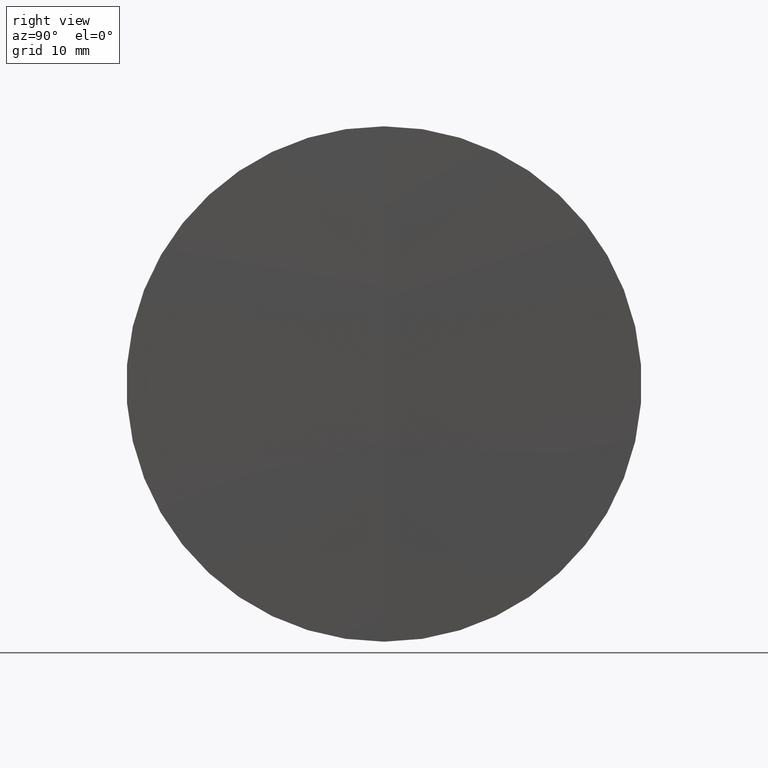
[diagram: clean part render]
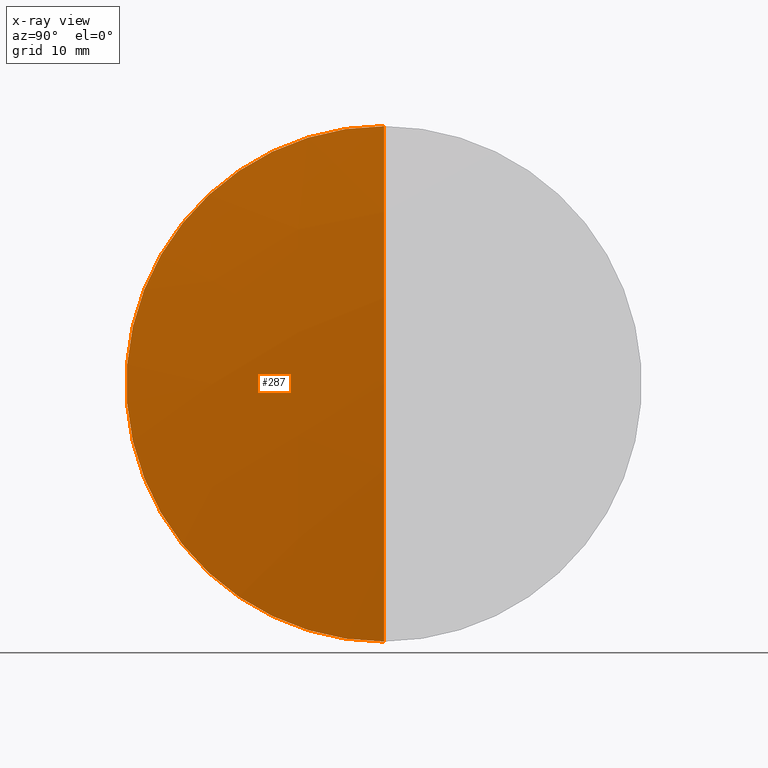
[diagram: x-ray — body ghosted, one internal face saturated and labeled with its STEP entity id]
A machine part, right view, then the same camera in x-ray: the body is ghosted and one INTERNAL B-rep face — a face not visible from any outside direction — is saturated and labeled: STEP entity #287.
In plain terms, the highlighted spherical surface has radius 259.4 mm.
Its self-contained STEP definition (entity closure, byte-faithful):
#6 = EDGE_CURVE ( 'NONE', #163, #120, #19, .T. ) ;
#10 = ORIENTED_EDGE ( 'NONE', *, *, #70, .F. ) ;
#17 = DIRECTION ( 'NONE',  ( 0.0000000000000000000, 0.0000000000000000000, 1.000000000000000000 ) ) ;
#19 = CIRCLE ( 'NONE', #253, 25.40000000000006300 ) ;
#38 = AXIS2_PLACEMENT_3D ( 'NONE', #219, #275, #88 ) ;
#42 = AXIS2_PLACEMENT_3D ( 'NONE', #312, #113, #118 ) ;
#64 = DIRECTION ( 'NONE',  ( 0.0000000000000000000, 0.0000000000000000000, 1.000000000000000000 ) ) ;
#70 = EDGE_CURVE ( 'NONE', #97, #120, #344, .T. ) ;
#88 = DIRECTION ( 'NONE',  ( 0.0000000000000000000, 0.0000000000000000000, -1.000000000000000000 ) ) ;
#96 = ORIENTED_EDGE ( 'NONE', *, *, #148, .T. ) ;
#97 = VERTEX_POINT ( 'NONE', #112 ) ;
#101 = CIRCLE ( 'NONE', #42, 259.3999999999999800 ) ;
#112 = CARTESIAN_POINT ( 'NONE',  ( 717.1805592743230600, 0.0000000000000000000, 9.429672165501970000E-015 ) ) ;
#113 = DIRECTION ( 'NONE',  ( -0.0000000000000000000, 1.000000000000000000, 1.224646799147353200E-016 ) ) ;
#116 = DIRECTION ( 'NONE',  ( 0.0000000000000000000, 1.000000000000000000, 0.0000000000000000000 ) ) ;
#118 = DIRECTION ( 'NONE',  ( 0.0000000000000000000, -1.224646799147353200E-016, 1.000000000000000000 ) ) ;
#119 = CARTESIAN_POINT ( 'NONE',  ( 457.7805592743230200, 0.0000000000000000000, -6.453996819439198100E-015 ) ) ;
#120 = VERTEX_POINT ( 'NONE', #221 ) ;
#123 = AXIS2_PLACEMENT_3D ( 'NONE', #119, #116, #17 ) ;
#143 = DIRECTION ( 'NONE',  ( -1.000000000000000000, -0.0000000000000000000, -0.0000000000000000000 ) ) ;
#148 = EDGE_CURVE ( 'NONE', #97, #163, #101, .T. ) ;
#163 = VERTEX_POINT ( 'NONE', #245 ) ;
#166 = CARTESIAN_POINT ( 'NONE',  ( 715.9340020172002100, 0.0000000000000000000, 0.0000000000000000000 ) ) ;
#182 = SPHERICAL_SURFACE ( 'NONE', #123, 259.3999999999999800 ) ;
#219 = CARTESIAN_POINT ( 'NONE',  ( 457.7805592743230200, 0.0000000000000000000, -6.453996819439198100E-015 ) ) ;
#221 = CARTESIAN_POINT ( 'NONE',  ( 715.9340020172002100, 0.0000000000000000000, 25.39999999999994500 ) ) ;
#245 = CARTESIAN_POINT ( 'NONE',  ( 715.9340020172002100, 3.110602869834270600E-015, -25.39999999999995200 ) ) ;
#253 = AXIS2_PLACEMENT_3D ( 'NONE', #166, #143, #64 ) ;
#255 = ORIENTED_EDGE ( 'NONE', *, *, #6, .T. ) ;
#275 = DIRECTION ( 'NONE',  ( 0.0000000000000000000, -1.000000000000000000, 0.0000000000000000000 ) ) ;
#287 = ADVANCED_FACE ( 'NONE', ( #323 ), #182, .F. ) ;
#312 = CARTESIAN_POINT ( 'NONE',  ( 457.7805592743230200, 0.0000000000000000000, -6.453996819439198100E-015 ) ) ;
#322 = EDGE_LOOP ( 'NONE', ( #10, #96, #255 ) ) ;
#323 = FACE_OUTER_BOUND ( 'NONE', #322, .T. ) ;
#344 = CIRCLE ( 'NONE', #38, 259.3999999999999800 ) ;